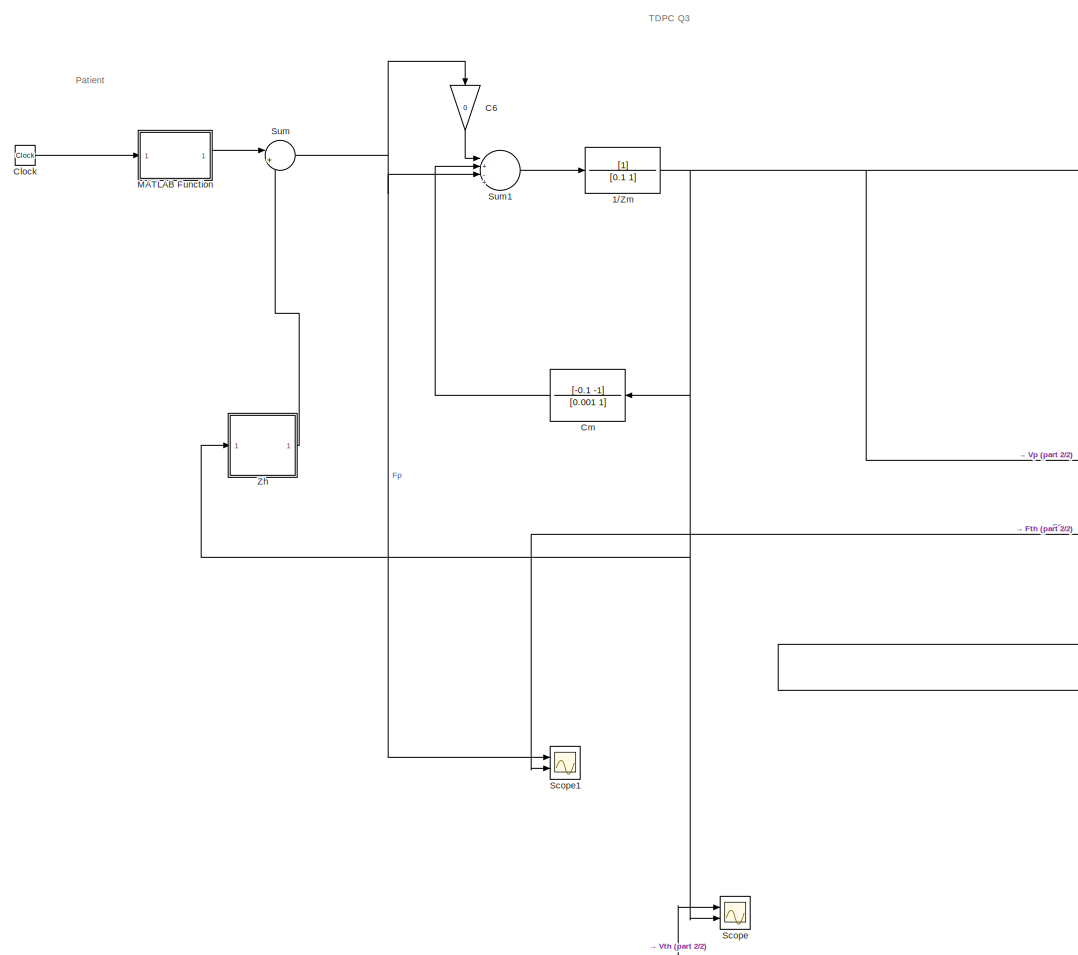
[diagram: root canvas - part 1/2, left side, full height]
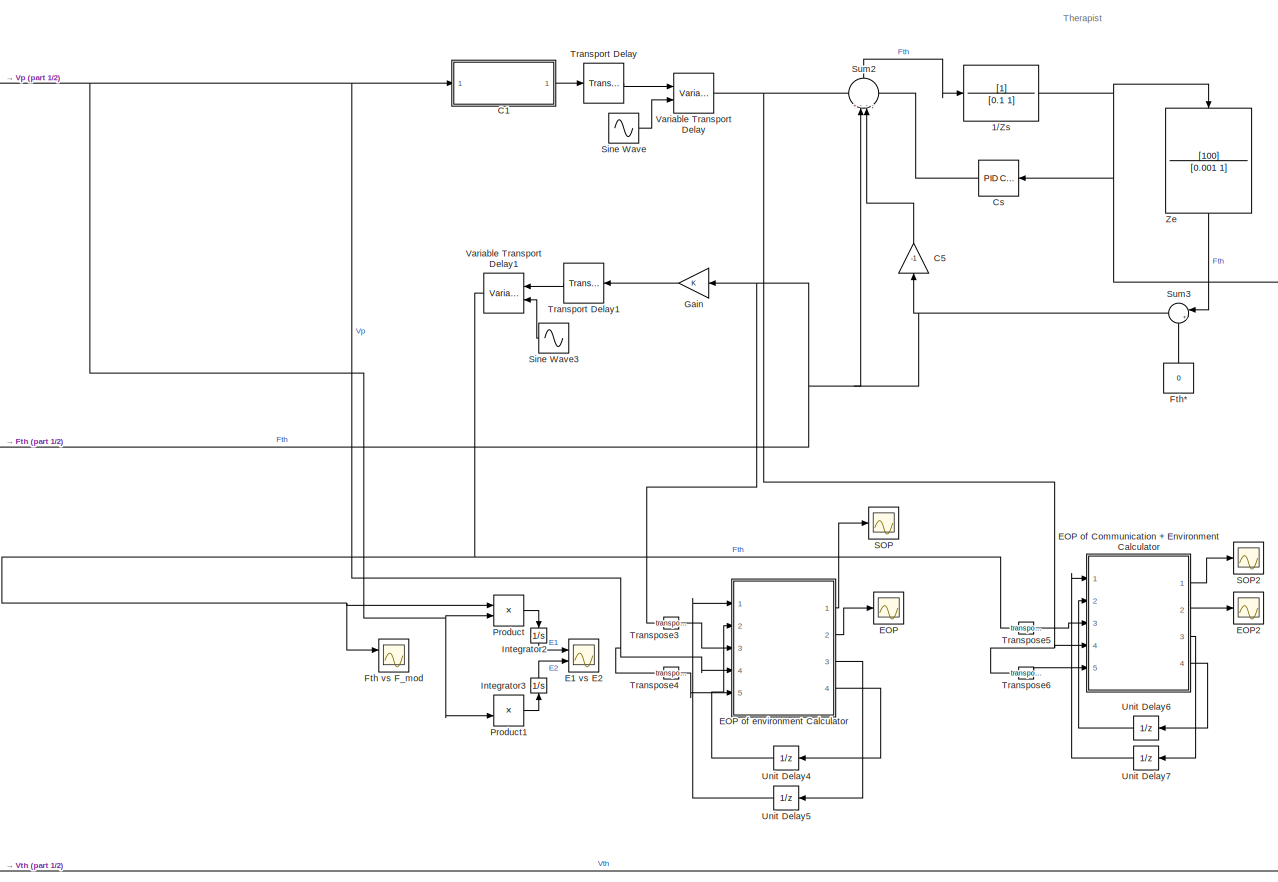
[diagram: root canvas - part 2/2, right side, full height]
MODEL slx_1e8b65aa449a
KIND model
CONFIG AbsTol = auto
CONFIG EnableMultiTasking = off
CONFIG FixedStep = 0.0001
CONFIG MaxStep = auto
CONFIG MinStep = auto
CONFIG RelTol = 1e-3
CONFIG SampleTimeConstraint = Unconstrained
CONFIG SolverName = ode4
CONFIG StartTime = 0.0
CONFIG StopTime = 20
BLOCK [TransferFcn] 1//Zm
  Denominator = [0.1 1]
BLOCK [TransferFcn] 1//Zs
  Denominator = [0.1 1]
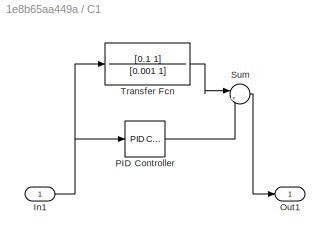
BLOCK [SubSystem] C1
  Ports = [1, 1]
  RequestExecContextInheritance = off
BLOCK [Inport] C1/In1
BLOCK [Outport] C1/Out1
BLOCK [Reference] C1/PID Controller  REF=slpidlib/PID Controller
  Ports = [1, 1]
  SourceBlock = slpidlib/PID Controller
  SourceProductBaseCode = SL
  SourceType = PID 1dof
BLOCK [Sum] C1/Sum
  Inputs = |++
  Ports = [2, 1]
BLOCK [TransferFcn] C1/Transfer Fcn
  Denominator = [0.001 1]
  Numerator = [0.1 1]
BLOCK [Gain] C5 
  Gain = -1
  NameLocation = right
BLOCK [Gain] C6 
  Gain = 0
  NameLocation = left
BLOCK [Clock] Clock
BLOCK [TransferFcn] Cm
  Denominator = [0.001 1]
  Numerator = [-0.1 -1]
BLOCK [Reference] Cs  REF=slpidlib/PID Controller
  Ports = [1, 1]
  SourceBlock = slpidlib/PID Controller
  SourceProductBaseCode = SL
  SourceType = PID 1dof
BLOCK [Scope] E1 vs E2
  Floating = off
  NumInputPorts = 2
  Ports = [2]
  ScopeSpecificationString = Simulink.scopes.TimeScopeBlockCfg('CurrentConfiguration', extmgr.ConfigurationSet(extmgr.Configuration('Core','General UI',true),extmgr.Configuration('Core','Source UI',true),extmgr.Configuration('Sources','WiredSimulink',true,'DataLoggingVariableName','ScopeData4'),extmgr.Configuration('Visuals','Time Domain',true,'SerializedDisplays',{struct('MinYLimReal','-2.15397','MaxYLimReal','0.24416','YLab...<+1421ch>
BLOCK [Scope] EOP
  Floating = off
  NumInputPorts = 1
  Ports = [1]
  ScopeSpecificationString = Simulink.scopes.TimeScopeBlockCfg('CurrentConfiguration', extmgr.ConfigurationSet(extmgr.Configuration('Core','General UI',true),extmgr.Configuration('Core','Source UI',true),extmgr.Configuration('Sources','WiredSimulink',true,'DataLoggingVariableName','ScopeData5'),extmgr.Configuration('Visuals','Time Domain',true,'SerializedDisplays',{struct('MinYLimReal','-55.80812','MaxYLimReal','6.2009','YLab...<+1423ch>
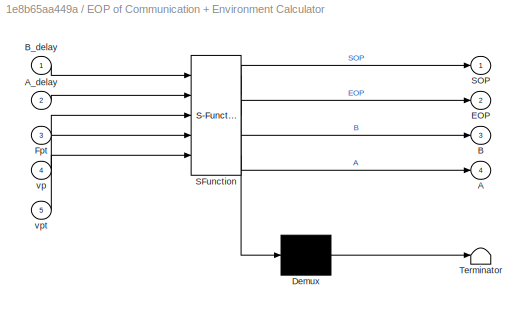
BLOCK [SubSystem] EOP of Communication + Environment Calculator
  ErrorFcn = Stateflow.Translate.translate
  PermitHierarchicalResolution = ExplicitOnly
  Ports = [5, 4]
  RequestExecContextInheritance = off
  SFBlockType = MATLAB Function
  TreatAsAtomicUnit = on
BLOCK [Demux] EOP of Communication + Environment Calculator/ Demux 
  Outputs = 1
  Ports = [1, 1]
BLOCK [S-Function] EOP of Communication + Environment Calculator/ SFunction 
  EnableBusSupport = on
  FunctionName = sf_sfun
  PortCounts = [5 5]
  Ports = [5, 5]
  SFcnIsStateOwnerBlock = off
  SFunctionDeploymentMode = off
  Tag = Stateflow S-Function 3
BLOCK [Terminator] EOP of Communication + Environment Calculator/ Terminator 
BLOCK [Outport] EOP of Communication + Environment Calculator/A
  Port = 4
BLOCK [Inport] EOP of Communication + Environment Calculator/A_delay
  Port = 2
BLOCK [Outport] EOP of Communication + Environment Calculator/B
  Port = 3
BLOCK [Inport] EOP of Communication + Environment Calculator/B_delay
BLOCK [Outport] EOP of Communication + Environment Calculator/EOP
  Port = 2
BLOCK [Inport] EOP of Communication + Environment Calculator/Fpt
  Port = 3
BLOCK [Outport] EOP of Communication + Environment Calculator/SOP
BLOCK [Inport] EOP of Communication + Environment Calculator/vp
  Port = 4
BLOCK [Inport] EOP of Communication + Environment Calculator/vpt
  Port = 5
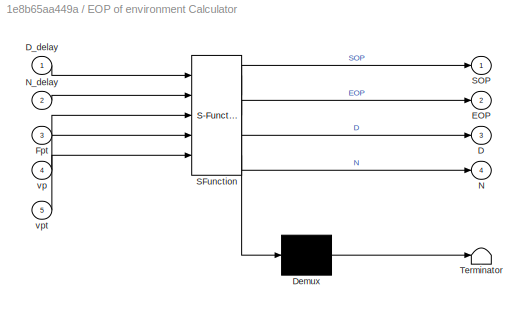
BLOCK [SubSystem] EOP of environment Calculator
  ErrorFcn = Stateflow.Translate.translate
  PermitHierarchicalResolution = ExplicitOnly
  Ports = [5, 4]
  RequestExecContextInheritance = off
  SFBlockType = MATLAB Function
  TreatAsAtomicUnit = on
BLOCK [Demux] EOP of environment Calculator/ Demux 
  Outputs = 1
  Ports = [1, 1]
BLOCK [S-Function] EOP of environment Calculator/ SFunction 
  EnableBusSupport = on
  FunctionName = sf_sfun
  PortCounts = [5 5]
  Ports = [5, 5]
  SFcnIsStateOwnerBlock = off
  SFunctionDeploymentMode = off
  Tag = Stateflow S-Function 1
BLOCK [Terminator] EOP of environment Calculator/ Terminator 
BLOCK [Outport] EOP of environment Calculator/D
  Port = 3
BLOCK [Inport] EOP of environment Calculator/D_delay
BLOCK [Outport] EOP of environment Calculator/EOP
  Port = 2
BLOCK [Inport] EOP of environment Calculator/Fpt
  Port = 3
BLOCK [Outport] EOP of environment Calculator/N
  Port = 4
BLOCK [Inport] EOP of environment Calculator/N_delay
  Port = 2
BLOCK [Outport] EOP of environment Calculator/SOP
BLOCK [Inport] EOP of environment Calculator/vp
  Port = 4
BLOCK [Inport] EOP of environment Calculator/vpt
  Port = 5
BLOCK [Scope] EOP2
  Floating = off
  NumInputPorts = 1
  Ports = [1]
  ScopeSpecificationString = Simulink.scopes.TimeScopeBlockCfg('CurrentConfiguration', extmgr.ConfigurationSet(extmgr.Configuration('Core','General UI',true),extmgr.Configuration('Core','Source UI',true),extmgr.Configuration('Sources','WiredSimulink',true,'DataLoggingVariableName','ScopeData6'),extmgr.Configuration('Visuals','Time Domain',true,'SerializedDisplays',{struct('MinYLimReal','-0.09053','MaxYLimReal','0.01006','YLab...<+1463ch>
BLOCK [Scope] Fth vs F_mod
  Floating = off
  NumInputPorts = 2
  Ports = [2]
  ScopeSpecificationString = Simulink.scopes.TimeScopeBlockCfg('CurrentConfiguration', extmgr.ConfigurationSet(extmgr.Configuration('Core','General UI',true),extmgr.Configuration('Core','Source UI',true),extmgr.Configuration('Sources','WiredSimulink',true,'DataLoggingVariableName','ScopeData7'),extmgr.Configuration('Visuals','Time Domain',true,'SerializedDisplays',{struct('MinYLimReal','-22.99963','MaxYLimReal','21.99932','YL...<+1428ch>
BLOCK [Constant] Fth*
  NameLocation = right
  OutDataTypeStr = Inherit: Inherit via back propagation
  Value = 0
BLOCK [Gain] Gain
BLOCK [Integrator] Integrator2
  NameLocation = left
  Ports = [1, 1]
BLOCK [Integrator] Integrator3
  NameLocation = left
  Ports = [1, 1]
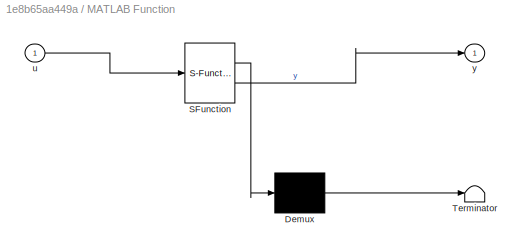
BLOCK [SubSystem] MATLAB Function
  ErrorFcn = Stateflow.Translate.translate
  PermitHierarchicalResolution = ExplicitOnly
  Ports = [1, 1]
  RequestExecContextInheritance = off
  SFBlockType = MATLAB Function
  TreatAsAtomicUnit = on
BLOCK [Demux] MATLAB Function/ Demux 
  Outputs = 1
  Ports = [1, 1]
BLOCK [S-Function] MATLAB Function/ SFunction 
  EnableBusSupport = on
  FunctionName = sf_sfun
  PortCounts = [1 2]
  Ports = [1, 2]
  SFcnIsStateOwnerBlock = off
  SFunctionDeploymentMode = off
  Tag = Stateflow S-Function 4
BLOCK [Terminator] MATLAB Function/ Terminator 
BLOCK [Inport] MATLAB Function/u
BLOCK [Outport] MATLAB Function/y
BLOCK [Product] Product
  Ports = [2, 1]
BLOCK [Product] Product1
  Ports = [2, 1]
BLOCK [Scope] SOP
  Floating = off
  NumInputPorts = 1
  Ports = [1]
  ScopeSpecificationString = Simulink.scopes.TimeScopeBlockCfg('CurrentConfiguration', extmgr.ConfigurationSet(extmgr.Configuration('Core','General UI',true),extmgr.Configuration('Core','Source UI',true),extmgr.Configuration('Sources','WiredSimulink',true,'DataLoggingVariableName','ScopeData8'),extmgr.Configuration('Visuals','Time Domain',true,'SerializedDisplays',{struct('MinYLimReal','-5.77896','MaxYLimReal','52.0106','YLab...<+1472ch>
BLOCK [Scope] SOP2
  Floating = off
  NumInputPorts = 1
  Ports = [1]
  ScopeSpecificationString = Simulink.scopes.TimeScopeBlockCfg('CurrentConfiguration', extmgr.ConfigurationSet(extmgr.Configuration('Core','General UI',true),extmgr.Configuration('Core','Source UI',true),extmgr.Configuration('Sources','WiredSimulink',true),extmgr.Configuration('Visuals','Time Domain',true,'SerializedDisplays',{struct('MinYLimReal','-0.01006','MaxYLimReal','0.09053','YLabelReal','','MinYLimMag','0.00000','MaxY...<+1449ch>
BLOCK [Scope] Scope
  Floating = off
  NumInputPorts = 2
  Ports = [2]
  ScopeSpecificationString = Simulink.scopes.TimeScopeBlockCfg('CurrentConfiguration', extmgr.ConfigurationSet(extmgr.Configuration('Core','General UI',true),extmgr.Configuration('Core','Source UI',true),extmgr.Configuration('Sources','WiredSimulink',true,'DataLoggingVariableName','ScopeData1'),extmgr.Configuration('Visuals','Time Domain',true,'SerializedDisplays',{struct('MinYLimReal','-0.23061','MaxYLimReal','0.22484','YLab...<+1394ch>
BLOCK [Scope] Scope1
  Floating = off
  NumInputPorts = 2
  Ports = [2]
  ScopeSpecificationString = Simulink.scopes.TimeScopeBlockCfg('CurrentConfiguration', extmgr.ConfigurationSet(extmgr.Configuration('Core','General UI',true),extmgr.Configuration('Core','Source UI',true),extmgr.Configuration('Sources','WiredSimulink',true,'DataLoggingVariableName','ScopeData2'),extmgr.Configuration('Visuals','Time Domain',true,'SerializedDisplays',{struct('MinYLimReal','-22.99978','MaxYLimReal','22.00206','YL...<+1425ch>
BLOCK [Sin] Sine Wave
  Amplitude = 0.02
  Frequency = 12
  Phase = pi/2
  Ports = [0, 1]
  SampleTime = 0
BLOCK [Sin] Sine Wave3
  Amplitude = 0.02
  Frequency = 12
  Phase = pi/2
  Ports = [0, 1]
  SampleTime = 0
BLOCK [Sum] Sum
  Inputs = |+-
  Ports = [2, 1]
BLOCK [Sum] Sum1
  Inputs = |+-+-
  Ports = [4, 1]
BLOCK [Sum] Sum2
  Inputs = +---
  NameLocation = right
  Ports = [4, 1]
BLOCK [Sum] Sum3
  Inputs = |++
  Ports = [2, 1]
BLOCK [TransportDelay] Transport Delay
  DelayTime = 0.1
  PadeOrder = 3
  Ports = [1, 1]
BLOCK [TransportDelay] Transport Delay1
  DelayTime = 0.1
  PadeOrder = 3
  Ports = [1, 1]
BLOCK [Math] Transpose3
  Operator = transpose
  Ports = [1, 1]
BLOCK [Math] Transpose4
  Operator = transpose
  Ports = [1, 1]
BLOCK [Math] Transpose5
  Operator = transpose
  Ports = [1, 1]
BLOCK [Math] Transpose6
  Operator = transpose
  Ports = [1, 1]
BLOCK [UnitDelay] Unit Delay4
  HasFrameUpgradeWarning = on
  SampleTime = -1
BLOCK [UnitDelay] Unit Delay5
  HasFrameUpgradeWarning = on
  SampleTime = -1
BLOCK [UnitDelay] Unit Delay6
  HasFrameUpgradeWarning = on
  SampleTime = -1
BLOCK [UnitDelay] Unit Delay7
  HasFrameUpgradeWarning = on
  SampleTime = -1
BLOCK [VariableTransportDelay] Variable Transport Delay
  PadeOrder = 3
  Ports = [2, 1]
BLOCK [VariableTransportDelay] Variable Transport Delay1
  PadeOrder = 3
  Ports = [2, 1]
BLOCK [TransferFcn] Ze
  Denominator = [0.001 1]
  NameLocation = right
  Numerator = [100]
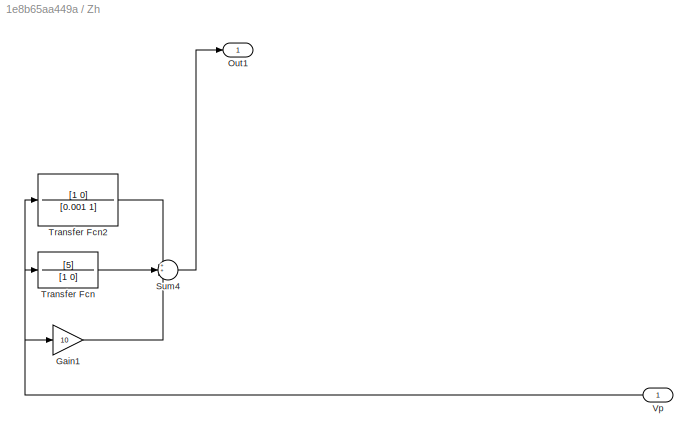
BLOCK [SubSystem] Zh
  Ports = [1, 1]
  RequestExecContextInheritance = off
BLOCK [Gain] Zh/Gain1
  Gain = 10
BLOCK [Outport] Zh/Out1
BLOCK [Sum] Zh/Sum4
  Inputs = 3
  Ports = [3, 1]
BLOCK [TransferFcn] Zh/Transfer Fcn
  Denominator = [1 0]
  Numerator = [5]
BLOCK [TransferFcn] Zh/Transfer Fcn2
  Denominator = [0.001 1]
  Numerator = [1 0]
BLOCK [Inport] Zh/Vp
ANNOTATION (root): TDPC Q3
ANNOTATION (root): Patient
ANNOTATION (root): Therapist
NET 1//Zm:1 -> C1:1, Cm:1, EOP of environment Calculator:4, Product1:2, Product:2, Scope:2, Transpose4:1, Zh:1
NET 1//Zs:1 -> Cs:1, Scope:1, Ze:1
NET C1/In1:1 -> C1/PID Controller:1, C1/Transfer Fcn:1
LINE C1/PID Controller:1 -> C1/Sum:2
LINE C1/Sum:1 -> C1/Out1:1
LINE C1/Transfer Fcn:1 -> C1/Sum:1
LINE C1:1 -> Transport Delay:1
LINE C5 :1 -> Sum2:3
LINE C6 :1 -> Sum1:1
LINE Clock:1 -> MATLAB Function:1
LINE Cm:1 -> Sum1:2
LINE Cs:1 -> Sum2:4
LINE EOP of Communication + Environment Calculator:1 -> SOP2:1
LINE EOP of Communication + Environment Calculator:2 -> EOP2:1
LINE EOP of Communication + Environment Calculator:3 -> Unit Delay7:1
LINE EOP of Communication + Environment Calculator:4 -> Unit Delay6:1
LINE EOP of environment Calculator:1 -> SOP:1
LINE EOP of environment Calculator:2 -> EOP:1
LINE EOP of environment Calculator:3 -> Unit Delay5:1
LINE EOP of environment Calculator:4 -> Unit Delay4:1
LINE Fth*:1 -> Sum3:2
LINE Gain:1 -> Transport Delay1:1
LINE Integrator2:1 -> E1 vs E2:1
LINE Integrator3:1 -> E1 vs E2:2
LINE MATLAB Function:1 -> Sum:1
LINE Product1:1 -> Integrator3:1
LINE Product:1 -> Integrator2:1
LINE Sine Wave3:1 -> Variable Transport Delay1:2
LINE Sine Wave:1 -> Variable Transport Delay:2
LINE Sum1:1 -> 1//Zm:1
LINE Sum2:1 -> 1//Zs:1
NET Sum3:1 -> C5 :1, Gain:1, Scope1:2, Sum2:2, Transpose3:1
NET Sum:1 -> C6 :1, Scope1:1, Sum1:3
LINE Transport Delay1:1 -> Variable Transport Delay1:1
LINE Transport Delay:1 -> Variable Transport Delay:1
LINE Transpose3:1 -> EOP of environment Calculator:3
LINE Transpose4:1 -> EOP of environment Calculator:5
LINE Transpose5:1 -> EOP of Communication + Environment Calculator:3
LINE Transpose6:1 -> EOP of Communication + Environment Calculator:5
LINE Unit Delay4:1 -> EOP of environment Calculator:2
LINE Unit Delay5:1 -> EOP of environment Calculator:1
LINE Unit Delay6:1 -> EOP of Communication + Environment Calculator:2
LINE Unit Delay7:1 -> EOP of Communication + Environment Calculator:1
NET Variable Transport Delay1:1 -> Fth vs F_mod:1, Product:1, Transpose5:1
NET Variable Transport Delay:1 -> EOP of Communication + Environment Calculator:4, Sum2:1, Transpose6:1
LINE Ze:1 -> Sum3:1
LINE Zh/Gain1:1 -> Zh/Sum4:3
LINE Zh/Sum4:1 -> Zh/Out1:1
LINE Zh/Transfer Fcn2:1 -> Zh/Sum4:1
LINE Zh/Transfer Fcn:1 -> Zh/Sum4:2
NET Zh/Vp:1 -> Zh/Gain1:1, Zh/Transfer Fcn2:1, Zh/Transfer Fcn:1
LINE Zh:1 -> Sum:2
note: NET lines group one-source signal fan-out (src -> all destinations, sorted); 1:1 wires keep LINE
CHART EOP of environment Calculator states=1 transitions=1
  STATE_LABEL 'eML_blk_kernel()'
  STATE_LABEL 'SCRIPT:\nfunction [SOP,EOP,D,N] = EOP_Calculator(D_delay,N_delay,Fpt,vp,vpt)\n\nN=N_delay+0.001*(Fpt*vp);\nD=D_delay+0.001*(vpt*vp);\n \nSOP= N/D;\n \nEOP=-SOP;\n'
CHART EOP of Communication + Environment Calculator states=1 transitions=1
  STATE_LABEL 'eML_blk_kernel()'
  STATE_LABEL 'SCRIPT:\nfunction [SOP,EOP,B,A] = EOP_Calculator(B_delay,A_delay,Fpt,vp,vpt)\n\nA=A_delay+0.001*(Fpt*vp);\nB=B_delay+0.001*(vpt*vp);\n \nSOP=A/B;\n \nEOP=-SOP;\n'
CHART MATLAB Function states=1 transitions=1
  STATE_LABEL 'eML_blk_kernel()'
  STATE_LABEL 'SCRIPT:\nfunction y = fcn(u)\n\ny = sin(5*u)+ cos(8*u);\n'
CHART  states=0 transitions=0
CHART  states=0 transitions=0
CHART  states=0 transitions=0
